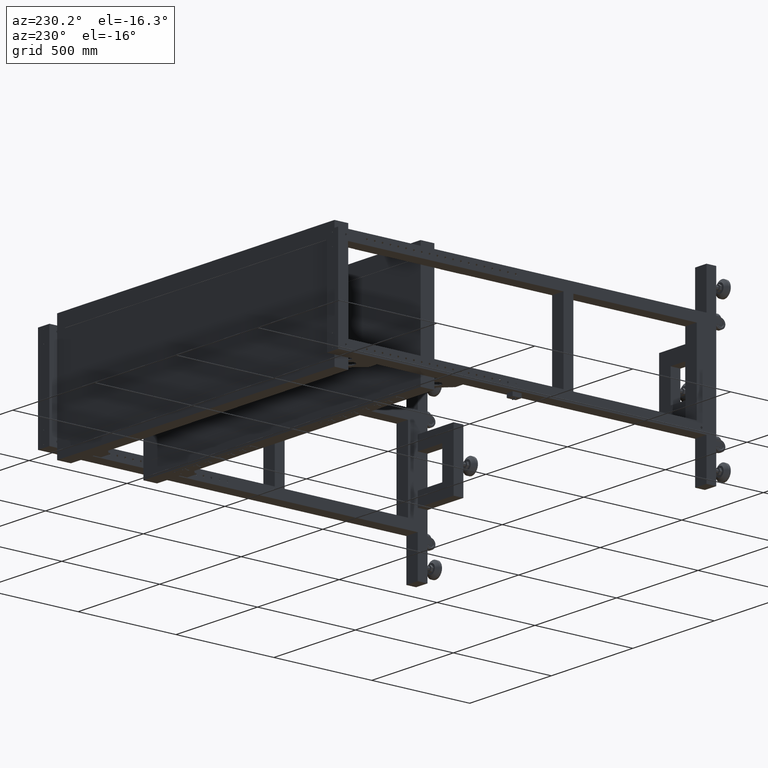
[diagram: clean part render]
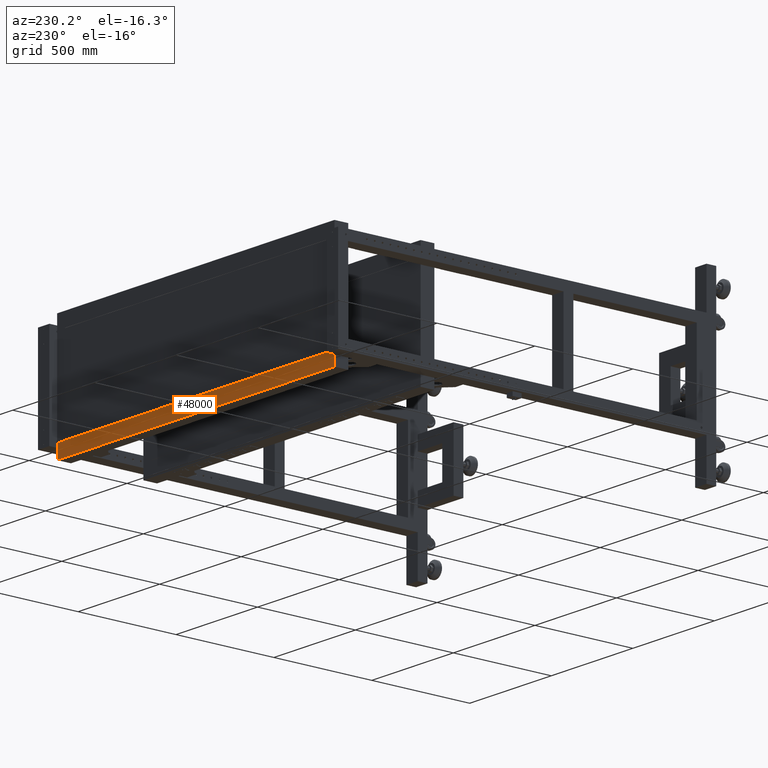
[diagram: same view with one face highlighted and labeled with its STEP entity id]
A machine part, auxiliary view. The second image highlights one B-rep face of the part: STEP entity #48000.
In plain terms, the highlighted planar face has unit normal (0, -1, -0).
Its self-contained STEP definition (entity closure, byte-faithful):
#1779 = CARTESIAN_POINT ( 'NONE',  ( 429.8275125628156275, 996.9410804020139949, -229.9999999999988631 ) ) ;
#2312 = EDGE_CURVE ( 'NONE', #19289, #31162, #77270, .T. ) ;
#5945 = VERTEX_POINT ( 'NONE', #47278 ) ;
#7350 = DIRECTION ( 'NONE',  ( -1.000000000000000000, -2.768038506440323819E-16, 0.000000000000000000 ) ) ;
#7835 = EDGE_CURVE ( 'NONE', #31162, #5945, #47288, .T. ) ;
#11036 = CARTESIAN_POINT ( 'NONE',  ( 429.8275125628156275, 996.9410804020142223, -299.9999999999988631 ) ) ;
#13057 = VECTOR ( 'NONE', #56732, 1000.000000000000000 ) ;
#16178 = CARTESIAN_POINT ( 'NONE',  ( 429.8275125628156275, 996.9410804020142223, -299.9999999999988631 ) ) ;
#19289 = VERTEX_POINT ( 'NONE', #66581 ) ;
#21162 = VECTOR ( 'NONE', #72092, 1000.000000000000000 ) ;
#21495 = DIRECTION ( 'NONE',  ( 2.768038506440323819E-16, -1.000000000000000000, -4.000000000000000311E-15 ) ) ;
#23355 = DIRECTION ( 'NONE',  ( -1.000000000000000000, -2.768038506440323819E-16, 0.000000000000000000 ) ) ;
#24433 = ORIENTED_EDGE ( 'NONE', *, *, #7835, .T. ) ;
#26427 = CARTESIAN_POINT ( 'NONE',  ( -1266.172487437185964, 996.9410804020139949, -299.9999999999988631 ) ) ;
#27867 = PLANE ( 'NONE',  #47009 ) ;
#28973 = CARTESIAN_POINT ( 'NONE',  ( 429.8275125628156275, 996.9410804020142223, -299.9999999999988631 ) ) ;
#29643 = CARTESIAN_POINT ( 'NONE',  ( -1266.172487437185964, 996.9410804020137675, -229.9999999999988631 ) ) ;
#31162 = VERTEX_POINT ( 'NONE', #28973 ) ;
#32083 = LINE ( 'NONE', #1779, #59792 ) ;
#36393 = ORIENTED_EDGE ( 'NONE', *, *, #48605, .F. ) ;
#42991 = ORIENTED_EDGE ( 'NONE', *, *, #73184, .F. ) ;
#44756 = LINE ( 'NONE', #26427, #13057 ) ;
#46941 = ORIENTED_EDGE ( 'NONE', *, *, #2312, .T. ) ;
#47009 = AXIS2_PLACEMENT_3D ( 'NONE', #70946, #21495, #70146 ) ;
#47278 = CARTESIAN_POINT ( 'NONE',  ( -1266.172487437185964, 996.9410804020139949, -299.9999999999988631 ) ) ;
#47288 = LINE ( 'NONE', #16178, #59069 ) ;
#48000 = ADVANCED_FACE ( 'NONE', ( #52196 ), #27867, .F. ) ;
#48605 = EDGE_CURVE ( 'NONE', #19289, #71896, #32083, .T. ) ;
#52196 = FACE_OUTER_BOUND ( 'NONE', #75948, .T. ) ;
#56732 = DIRECTION ( 'NONE',  ( 0.000000000000000000, 4.000000000000000311E-15, -1.000000000000000000 ) ) ;
#59069 = VECTOR ( 'NONE', #23355, 1000.000000000000000 ) ;
#59792 = VECTOR ( 'NONE', #7350, 1000.000000000000000 ) ;
#66581 = CARTESIAN_POINT ( 'NONE',  ( 429.8275125628156275, 996.9410804020139949, -229.9999999999988631 ) ) ;
#70146 = DIRECTION ( 'NONE',  ( -1.000000000000000000, -2.768038506440323819E-16, 0.000000000000000000 ) ) ;
#70946 = CARTESIAN_POINT ( 'NONE',  ( 429.8275125628156275, 996.9410804020142223, -299.9999999999988631 ) ) ;
#71896 = VERTEX_POINT ( 'NONE', #29643 ) ;
#72092 = DIRECTION ( 'NONE',  ( -1.107215402576129614E-30, 4.000000000000000311E-15, -1.000000000000000000 ) ) ;
#73184 = EDGE_CURVE ( 'NONE', #71896, #5945, #44756, .T. ) ;
#75948 = EDGE_LOOP ( 'NONE', ( #24433, #42991, #36393, #46941 ) ) ;
#77270 = LINE ( 'NONE', #11036, #21162 ) ;